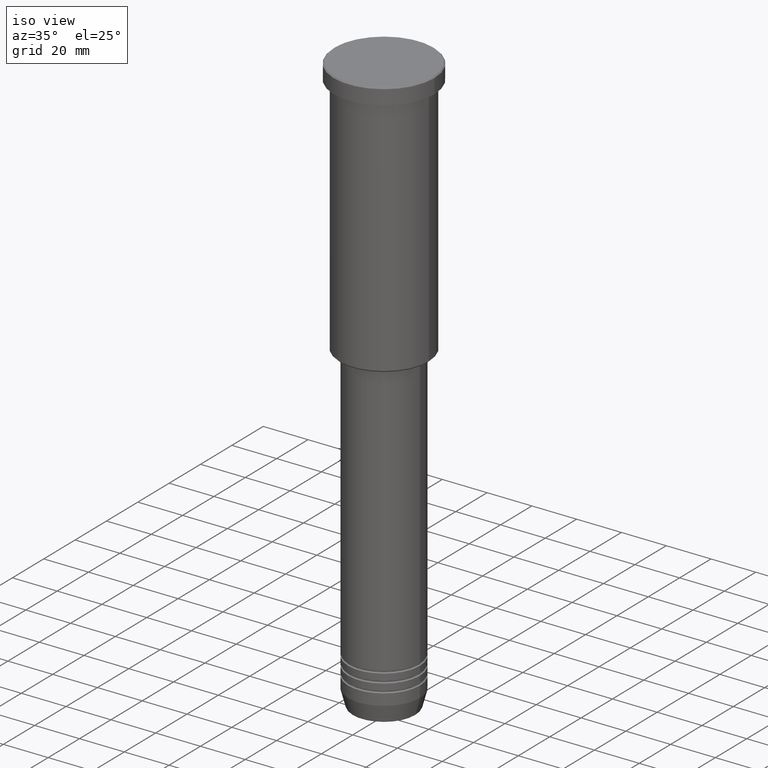
[diagram: clean part render]
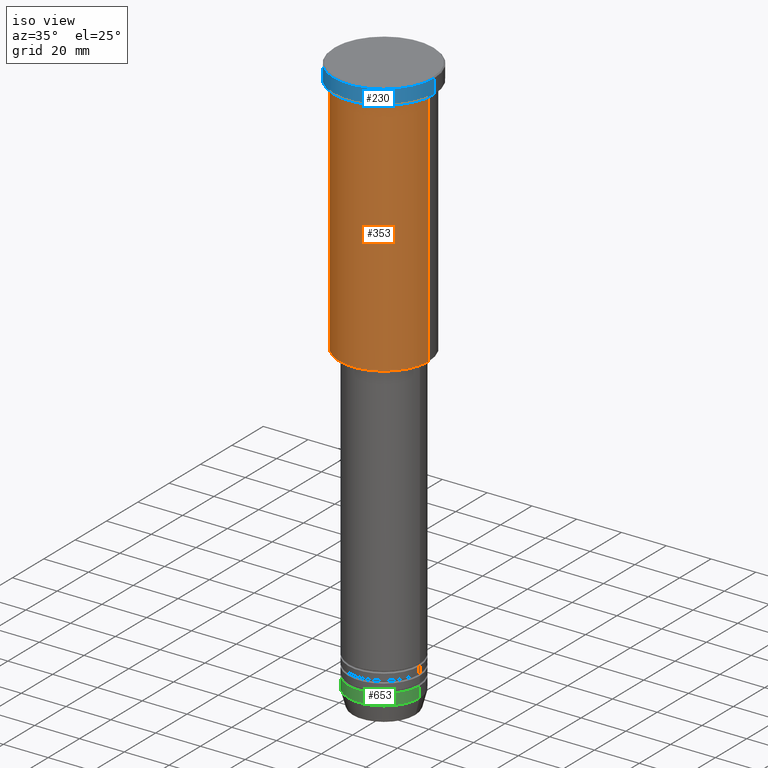
[diagram: same view with three faces highlighted in distinct colors, each labeled with its STEP entity id]
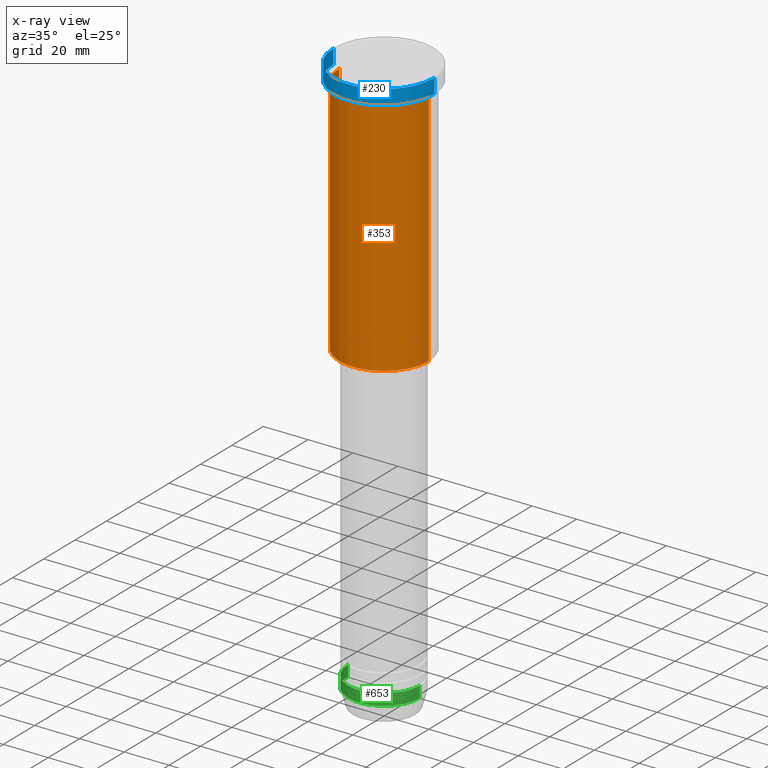
[diagram: x-ray of the same camera — body ghosted, the three highlighted faces saturated]
A machine part, iso view with three faces highlighted in distinct colors.
The next image is the same camera in x-ray (body ghosted, the three faces saturated) — at least one of them is partly hidden behind the body in this view.
Their STEP definitions:

[orange] entity #353 — the highlighted cylindrical surface (partial cylindrical patch) has radius 20 mm, axis along (-0, -0, 1).
#59 = CARTESIAN_POINT ( 'NONE',  ( -20.00000000000000355, 2.449293598294706907E-15, -115.4999999999999574 ) ) ;
#125 = CARTESIAN_POINT ( 'NONE',  ( 0.000000000000000000, 0.000000000000000000, -115.4999999999999574 ) ) ;
#144 = CARTESIAN_POINT ( 'NONE',  ( 20.00000000000000355, 0.000000000000000000, 0.000000000000000000 ) ) ;
#194 = AXIS2_PLACEMENT_3D ( 'NONE', #1096, #268, #889 ) ;
#196 = VERTEX_POINT ( 'NONE', #59 ) ;
#228 = ORIENTED_EDGE ( 'NONE', *, *, #286, .T. ) ;
#229 = AXIS2_PLACEMENT_3D ( 'NONE', #125, #310, #1128 ) ;
#257 = FACE_OUTER_BOUND ( 'NONE', #1122, .T. ) ;
#268 = DIRECTION ( 'NONE',  ( -0.000000000000000000, -0.000000000000000000, 1.000000000000000000 ) ) ;
#270 = VERTEX_POINT ( 'NONE', #994 ) ;
#276 = LINE ( 'NONE', #637, #1170 ) ;
#285 = AXIS2_PLACEMENT_3D ( 'NONE', #619, #520, #1059 ) ;
#286 = EDGE_CURVE ( 'NONE', #270, #832, #857, .T. ) ;
#310 = DIRECTION ( 'NONE',  ( -0.000000000000000000, -0.000000000000000000, 1.000000000000000000 ) ) ;
#353 = ADVANCED_FACE ( 'NONE', ( #257 ), #700, .T. ) ;
#367 = ORIENTED_EDGE ( 'NONE', *, *, #740, .T. ) ;
#377 = DIRECTION ( 'NONE',  ( -0.000000000000000000, -0.000000000000000000, 1.000000000000000000 ) ) ;
#476 = ORIENTED_EDGE ( 'NONE', *, *, #612, .F. ) ;
#520 = DIRECTION ( 'NONE',  ( -0.000000000000000000, -0.000000000000000000, 1.000000000000000000 ) ) ;
#612 = EDGE_CURVE ( 'NONE', #196, #812, #276, .T. ) ;
#619 = CARTESIAN_POINT ( 'NONE',  ( 0.000000000000000000, 0.000000000000000000, 0.000000000000000000 ) ) ;
#637 = CARTESIAN_POINT ( 'NONE',  ( -20.00000000000000355, 2.449293598294706907E-15, 0.000000000000000000 ) ) ;
#698 = CARTESIAN_POINT ( 'NONE',  ( -20.00000000000000000, 2.449293598294706513E-15, -7.999999999999994671 ) ) ;
#700 = CYLINDRICAL_SURFACE ( 'NONE', #285, 20.00000000000000355 ) ;
#724 = ORIENTED_EDGE ( 'NONE', *, *, #1100, .F. ) ;
#740 = EDGE_CURVE ( 'NONE', #196, #270, #758, .T. ) ;
#758 = CIRCLE ( 'NONE', #229, 20.00000000000000355 ) ;
#788 = CARTESIAN_POINT ( 'NONE',  ( 20.00000000000000000, 0.000000000000000000, -7.999999999999994671 ) ) ;
#812 = VERTEX_POINT ( 'NONE', #698 ) ;
#829 = CIRCLE ( 'NONE', #194, 20.00000000000000000 ) ;
#832 = VERTEX_POINT ( 'NONE', #788 ) ;
#857 = LINE ( 'NONE', #144, #925 ) ;
#889 = DIRECTION ( 'NONE',  ( 1.000000000000000000, 0.000000000000000000, 0.000000000000000000 ) ) ;
#925 = VECTOR ( 'NONE', #1029, 1000.000000000000000 ) ;
#994 = CARTESIAN_POINT ( 'NONE',  ( 20.00000000000000355, 0.000000000000000000, -115.4999999999999574 ) ) ;
#1029 = DIRECTION ( 'NONE',  ( -0.000000000000000000, -0.000000000000000000, 1.000000000000000000 ) ) ;
#1059 = DIRECTION ( 'NONE',  ( 1.000000000000000000, 0.000000000000000000, 0.000000000000000000 ) ) ;
#1096 = CARTESIAN_POINT ( 'NONE',  ( 0.000000000000000000, 0.000000000000000000, -7.999999999999994671 ) ) ;
#1100 = EDGE_CURVE ( 'NONE', #812, #832, #829, .T. ) ;
#1122 = EDGE_LOOP ( 'NONE', ( #476, #367, #228, #724 ) ) ;
#1128 = DIRECTION ( 'NONE',  ( -1.000000000000000000, 0.000000000000000000, 0.000000000000000000 ) ) ;
#1170 = VECTOR ( 'NONE', #377, 1000.000000000000000 ) ;

[blue] entity #230 — the highlighted cylindrical surface (partial cylindrical patch) has radius 22.5 mm, axis along (-0, -0, 1).
#10 = CARTESIAN_POINT ( 'NONE',  ( -22.50000000000000000, 2.755455298081544778E-15, 0.000000000000000000 ) ) ;
#11 = ORIENTED_EDGE ( 'NONE', *, *, #262, .T. ) ;
#69 = DIRECTION ( 'NONE',  ( 0.000000000000000000, 0.000000000000000000, -1.000000000000000000 ) ) ;
#100 = LINE ( 'NONE', #10, #311 ) ;
#181 = DIRECTION ( 'NONE',  ( -0.000000000000000000, -0.000000000000000000, 1.000000000000000000 ) ) ;
#183 = CARTESIAN_POINT ( 'NONE',  ( 22.50000000000000000, 0.000000000000000000, -0.5000000000001045830 ) ) ;
#230 = ADVANCED_FACE ( 'NONE', ( #888 ), #875, .T. ) ;
#254 = CARTESIAN_POINT ( 'NONE',  ( 0.000000000000000000, 0.000000000000000000, 0.000000000000000000 ) ) ;
#256 = VERTEX_POINT ( 'NONE', #259 ) ;
#259 = CARTESIAN_POINT ( 'NONE',  ( 22.50000000000000000, 0.000000000000000000, -6.999999999999995559 ) ) ;
#261 = VERTEX_POINT ( 'NONE', #621 ) ;
#262 = EDGE_CURVE ( 'NONE', #261, #256, #769, .T. ) ;
#265 = AXIS2_PLACEMENT_3D ( 'NONE', #1182, #629, #803 ) ;
#311 = VECTOR ( 'NONE', #366, 1000.000000000000000 ) ;
#366 = DIRECTION ( 'NONE',  ( -0.000000000000000000, -0.000000000000000000, 1.000000000000000000 ) ) ;
#468 = VERTEX_POINT ( 'NONE', #795 ) ;
#512 = AXIS2_PLACEMENT_3D ( 'NONE', #960, #69, #771 ) ;
#542 = EDGE_CURVE ( 'NONE', #256, #1115, #640, .T. ) ;
#552 = ORIENTED_EDGE ( 'NONE', *, *, #598, .F. ) ;
#598 = EDGE_CURVE ( 'NONE', #261, #468, #100, .T. ) ;
#621 = CARTESIAN_POINT ( 'NONE',  ( -22.50000000000000000, 2.755455298081544778E-15, -6.999999999999995559 ) ) ;
#629 = DIRECTION ( 'NONE',  ( -0.000000000000000000, -0.000000000000000000, 1.000000000000000000 ) ) ;
#635 = ORIENTED_EDGE ( 'NONE', *, *, #542, .T. ) ;
#640 = LINE ( 'NONE', #1109, #756 ) ;
#662 = AXIS2_PLACEMENT_3D ( 'NONE', #254, #1081, #704 ) ;
#704 = DIRECTION ( 'NONE',  ( 1.000000000000000000, 0.000000000000000000, 0.000000000000000000 ) ) ;
#756 = VECTOR ( 'NONE', #181, 1000.000000000000000 ) ;
#769 = CIRCLE ( 'NONE', #265, 22.50000000000000000 ) ;
#771 = DIRECTION ( 'NONE',  ( 1.000000000000000000, 0.000000000000000000, 0.000000000000000000 ) ) ;
#795 = CARTESIAN_POINT ( 'NONE',  ( -22.50000000000000000, 2.755455298081544778E-15, -0.5000000000001045830 ) ) ;
#803 = DIRECTION ( 'NONE',  ( 1.000000000000000000, 0.000000000000000000, 0.000000000000000000 ) ) ;
#875 = CYLINDRICAL_SURFACE ( 'NONE', #662, 22.50000000000000000 ) ;
#888 = FACE_OUTER_BOUND ( 'NONE', #1181, .T. ) ;
#960 = CARTESIAN_POINT ( 'NONE',  ( 0.000000000000000000, 0.000000000000000000, -0.5000000000001045830 ) ) ;
#999 = EDGE_CURVE ( 'NONE', #1115, #468, #1031, .T. ) ;
#1031 = CIRCLE ( 'NONE', #512, 22.50000000000000000 ) ;
#1081 = DIRECTION ( 'NONE',  ( -0.000000000000000000, -0.000000000000000000, 1.000000000000000000 ) ) ;
#1109 = CARTESIAN_POINT ( 'NONE',  ( 22.50000000000000000, 0.000000000000000000, 0.000000000000000000 ) ) ;
#1115 = VERTEX_POINT ( 'NONE', #183 ) ;
#1124 = ORIENTED_EDGE ( 'NONE', *, *, #999, .T. ) ;
#1181 = EDGE_LOOP ( 'NONE', ( #552, #11, #635, #1124 ) ) ;
#1182 = CARTESIAN_POINT ( 'NONE',  ( 0.000000000000000000, 0.000000000000000000, -6.999999999999995559 ) ) ;

[green] entity #653 — the highlighted cylindrical surface (partial cylindrical patch) has radius 16 mm, axis along (-0, -0, 1).
#61 = ORIENTED_EDGE ( 'NONE', *, *, #1156, .F. ) ;
#124 = ORIENTED_EDGE ( 'NONE', *, *, #800, .F. ) ;
#153 = CARTESIAN_POINT ( 'NONE',  ( 16.00000000000000000, 0.000000000000000000, 0.000000000000000000 ) ) ;
#161 = EDGE_CURVE ( 'NONE', #1127, #915, #499, .T. ) ;
#220 = DIRECTION ( 'NONE',  ( -0.000000000000000000, -0.000000000000000000, 1.000000000000000000 ) ) ;
#233 = DIRECTION ( 'NONE',  ( -0.000000000000000000, -0.000000000000000000, 1.000000000000000000 ) ) ;
#238 = VERTEX_POINT ( 'NONE', #448 ) ;
#242 = LINE ( 'NONE', #689, #909 ) ;
#317 = VERTEX_POINT ( 'NONE', #936 ) ;
#355 = CYLINDRICAL_SURFACE ( 'NONE', #589, 16.00000000000000000 ) ;
#448 = CARTESIAN_POINT ( 'NONE',  ( -16.00000000000000000, 1.959434878635765131E-15, -252.5000000000000000 ) ) ;
#465 = DIRECTION ( 'NONE',  ( 1.000000000000000000, 0.000000000000000000, 0.000000000000000000 ) ) ;
#499 = LINE ( 'NONE', #153, #826 ) ;
#533 = CARTESIAN_POINT ( 'NONE',  ( 0.000000000000000000, 0.000000000000000000, -252.5000000000000000 ) ) ;
#560 = ORIENTED_EDGE ( 'NONE', *, *, #161, .T. ) ;
#567 = DIRECTION ( 'NONE',  ( 1.000000000000000000, 0.000000000000000000, 0.000000000000000000 ) ) ;
#589 = AXIS2_PLACEMENT_3D ( 'NONE', #991, #220, #673 ) ;
#616 = CARTESIAN_POINT ( 'NONE',  ( 16.00000000000000000, 0.000000000000000000, -252.5000000000000000 ) ) ;
#634 = DIRECTION ( 'NONE',  ( -0.000000000000000000, -0.000000000000000000, 1.000000000000000000 ) ) ;
#653 = ADVANCED_FACE ( 'NONE', ( #824 ), #355, .T. ) ;
#667 = AXIS2_PLACEMENT_3D ( 'NONE', #916, #1013, #567 ) ;
#673 = DIRECTION ( 'NONE',  ( 1.000000000000000000, 0.000000000000000000, 0.000000000000000000 ) ) ;
#689 = CARTESIAN_POINT ( 'NONE',  ( -16.00000000000000000, 1.959434878635765131E-15, 0.000000000000000000 ) ) ;
#800 = EDGE_CURVE ( 'NONE', #238, #317, #242, .T. ) ;
#810 = CIRCLE ( 'NONE', #1053, 16.00000000000000000 ) ;
#824 = FACE_OUTER_BOUND ( 'NONE', #981, .T. ) ;
#826 = VECTOR ( 'NONE', #959, 1000.000000000000000 ) ;
#847 = CARTESIAN_POINT ( 'NONE',  ( 16.00000000000000000, 0.000000000000000000, -247.5000000000000000 ) ) ;
#909 = VECTOR ( 'NONE', #233, 1000.000000000000000 ) ;
#915 = VERTEX_POINT ( 'NONE', #847 ) ;
#916 = CARTESIAN_POINT ( 'NONE',  ( 0.000000000000000000, 0.000000000000000000, -247.5000000000000000 ) ) ;
#936 = CARTESIAN_POINT ( 'NONE',  ( -16.00000000000000000, 1.959434878635765131E-15, -247.5000000000000000 ) ) ;
#959 = DIRECTION ( 'NONE',  ( -0.000000000000000000, -0.000000000000000000, 1.000000000000000000 ) ) ;
#973 = CIRCLE ( 'NONE', #667, 16.00000000000000000 ) ;
#981 = EDGE_LOOP ( 'NONE', ( #124, #1080, #560, #61 ) ) ;
#991 = CARTESIAN_POINT ( 'NONE',  ( 0.000000000000000000, 0.000000000000000000, 0.000000000000000000 ) ) ;
#1013 = DIRECTION ( 'NONE',  ( -0.000000000000000000, -0.000000000000000000, 1.000000000000000000 ) ) ;
#1053 = AXIS2_PLACEMENT_3D ( 'NONE', #533, #634, #465 ) ;
#1080 = ORIENTED_EDGE ( 'NONE', *, *, #1095, .T. ) ;
#1095 = EDGE_CURVE ( 'NONE', #238, #1127, #810, .T. ) ;
#1127 = VERTEX_POINT ( 'NONE', #616 ) ;
#1156 = EDGE_CURVE ( 'NONE', #317, #915, #973, .T. ) ;